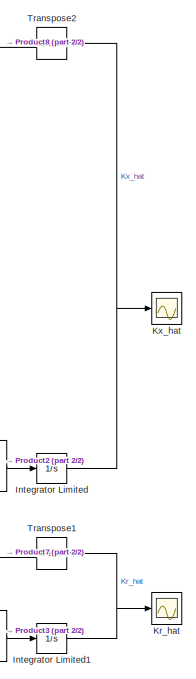
[diagram: root canvas - part 1/2, middle right region]
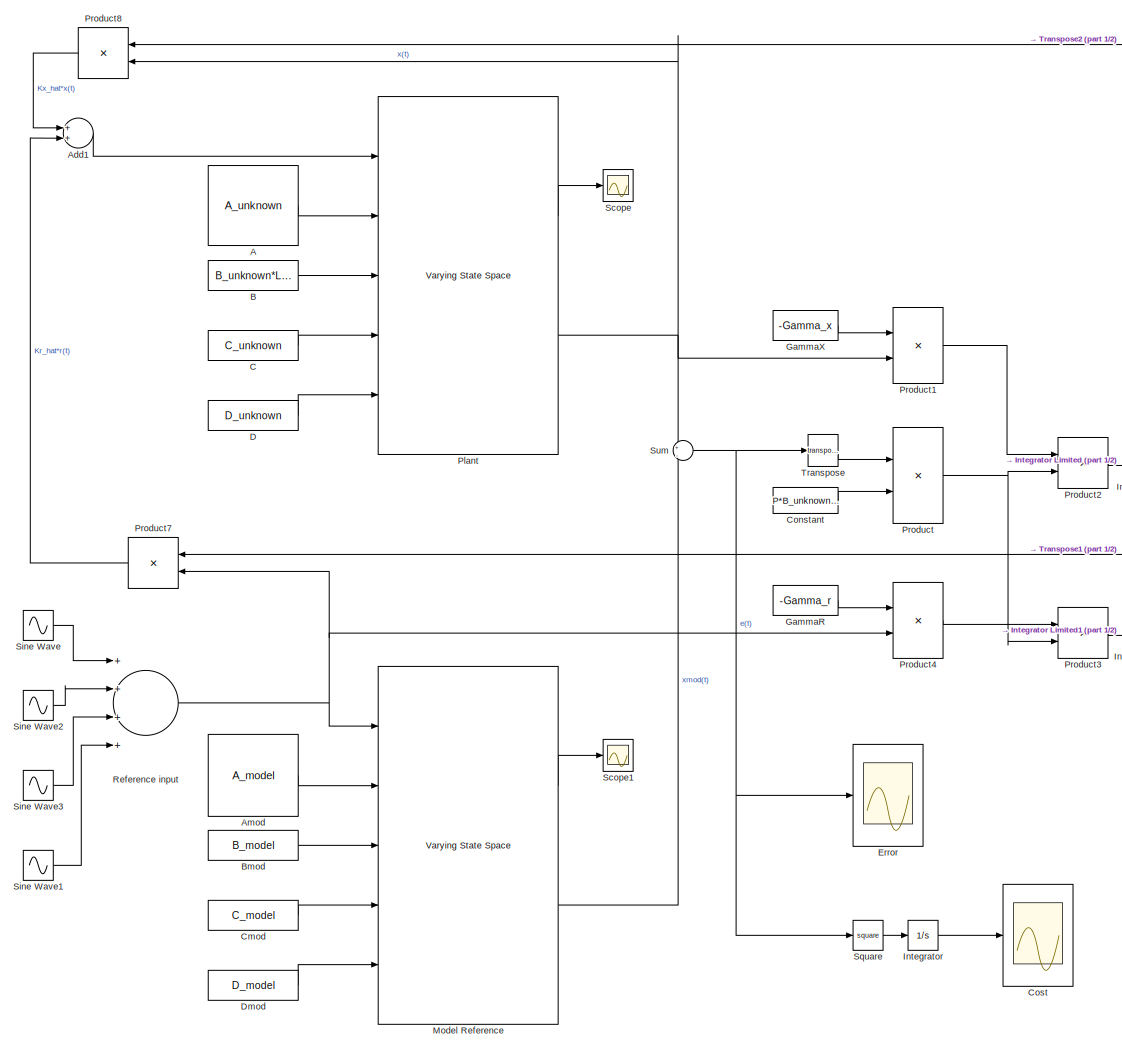
[diagram: root canvas - part 2/2, most of the canvas]
MODEL slx_78c9c2cd16ab
KIND model
CONFIG AbsTol = auto
CONFIG EnableMultiTasking = off
CONFIG FixedStep = 0.01
CONFIG MaxStep = auto
CONFIG MinStep = auto
CONFIG RelTol = 1e-3
CONFIG SampleTimeConstraint = Unconstrained
CONFIG Solver = VariableStepAuto
CONFIG SolverName = VariableStepAuto
CONFIG StartTime = 0.0
CONFIG StopTime = 10000
WORKSPACE source: MAT-file member
WORKSPACE A_model = [-7 1 0 -14 0 1 -8 0 0]
WORKSPACE A_unknown = [-7.5 1 0 -16 0 1 -8.5 0 0]
WORKSPACE C_unknown = [-7 -9 2]
BLOCK [Constant] A
  Value = A_unknown
  VectorParams1D = off
BLOCK [Sum] Add1
  InputSameDT = off
  OutDataTypeStr = Inherit: Inherit via internal rule
  Ports = [2, 1]
  SaturateOnIntegerOverflow = off
BLOCK [Constant] Amod
  Value = A_model
  VectorParams1D = off
BLOCK [Constant] B
  Value = B_unknown*Lambda
  VectorParams1D = off
BLOCK [Constant] Bmod
  Value = B_model
  VectorParams1D = off
BLOCK [Constant] C
  Value = C_unknown
  VectorParams1D = off
BLOCK [Constant] Cmod
  Value = C_model
  VectorParams1D = off
BLOCK [Constant] Constant
  Value = P*B_unknown*sign(Lambda)
BLOCK [Scope] Cost
  Floating = off
  NumInputPorts = 1
  Ports = [1]
  ScopeSpecificationString = Simulink.scopes.TimeScopeBlockCfg('CurrentConfiguration', extmgr.ConfigurationSet(extmgr.Configuration('Core','General UI',true),extmgr.Configuration('Core','Source UI',true),extmgr.Configuration('Sources','WiredSimulink',true,'DataLoggingVariableName','ScopeData5'),extmgr.Configuration('Visuals','Time Domain',true,'SerializedDisplays',{struct('MinYLimReal','-0.01089','MaxYLimReal','0.09804','YLab...<+1401ch>
BLOCK [Constant] D
  Value = D_unknown
BLOCK [Constant] Dmod
  Value = D_model
BLOCK [Scope] Error
  Floating = off
  NumInputPorts = 1
  Ports = [1]
  ScopeSpecificationString = Simulink.scopes.TimeScopeBlockCfg('CurrentConfiguration', extmgr.ConfigurationSet(extmgr.Configuration('Core','General UI',true),extmgr.Configuration('Core','Source UI',true),extmgr.Configuration('Sources','WiredSimulink',true,'DataLoggingVariableName','ScopeData1'),extmgr.Configuration('Visuals','Time Domain',true,'SerializedDisplays',{struct('MinYLimReal','-0.32134','MaxYLimReal','0.17301','YLab...<+1383ch>
BLOCK [Constant] GammaR
  Value = -Gamma_r
BLOCK [Constant] GammaX
  Value = -Gamma_x
BLOCK [Integrator] Integrator
  Ports = [1, 1]
BLOCK [Integrator] Integrator Limited
  InitialCondition = K_x_hat_0
  LimitOutput = on
  LowerSaturationLimit = 0
  Ports = [1, 1]
  UpperSaturationLimit = 1
BLOCK [Integrator] Integrator Limited1
  InitialCondition = K_r_hat_0
  LimitOutput = on
  LowerSaturationLimit = 0
  Ports = [1, 1]
  UpperSaturationLimit = 1
BLOCK [Scope] Kr_hat
  Floating = off
  NumInputPorts = 1
  Ports = [1]
  ScopeSpecificationString = Simulink.scopes.TimeScopeBlockCfg('CurrentConfiguration', extmgr.ConfigurationSet(extmgr.Configuration('Core','General UI',true),extmgr.Configuration('Core','Source UI',true),extmgr.Configuration('Sources','WiredSimulink',true,'DataLoggingVariableName','ScopeData3'),extmgr.Configuration('Visuals','Time Domain',true,'SerializedDisplays',{struct('MinYLimReal','-0.083','MaxYLimReal','0.74702','YLabel...<+1361ch>
BLOCK [Scope] Kx_hat
  Floating = off
  NumInputPorts = 1
  Ports = [1]
  ScopeSpecificationString = Simulink.scopes.TimeScopeBlockCfg('CurrentConfiguration', extmgr.ConfigurationSet(extmgr.Configuration('Core','General UI',true),extmgr.Configuration('Core','Source UI',true),extmgr.Configuration('Sources','WiredSimulink',true,'DataLoggingVariableName','ScopeData2'),extmgr.Configuration('Visuals','Time Domain',true,'SerializedDisplays',{struct('MinYLimReal','-0.125','MaxYLimReal','1.125','YLabelRe...<+1377ch>
BLOCK [Reference] Model Reference  REF=cstblocks/Linear Parameter Varying/Varying State Space
  Ports = [5, 2]
  SourceBlock = cstblocks/Linear Parameter Varying/Varying State Space
  SourceProductBaseCode = CT
  SourceProductName = Control System Toolbox
  SourceType = Varying State Space
BLOCK [Reference] Plant  REF=cstblocks/Linear Parameter Varying/Varying State Space
  Ports = [5, 2]
  SourceBlock = cstblocks/Linear Parameter Varying/Varying State Space
  SourceProductBaseCode = CT
  SourceProductName = Control System Toolbox
  SourceType = Varying State Space
BLOCK [Product] Product
  Multiplication = Matrix(*)
  OutDataTypeStr = Inherit: Inherit via internal rule
  Ports = [2, 1]
  RndMeth = Floor
  SCDEnableBlockLinearizationSpecification = on
  SaturateOnIntegerOverflow = off
BLOCK [Product] Product1
  InputSameDT = off
  Multiplication = Matrix(*)
  OutDataTypeStr = Inherit: Inherit via internal rule
  Ports = [2, 1]
  RndMeth = Floor
  SCDEnableBlockLinearizationSpecification = on
  SaturateOnIntegerOverflow = off
BLOCK [Product] Product2
  InputSameDT = off
  Multiplication = Matrix(*)
  OutDataTypeStr = Inherit: Inherit via internal rule
  Ports = [2, 1]
  RndMeth = Floor
  SCDEnableBlockLinearizationSpecification = on
  SaturateOnIntegerOverflow = off
BLOCK [Product] Product3
  InputSameDT = off
  Multiplication = Matrix(*)
  OutDataTypeStr = Inherit: Inherit via internal rule
  Ports = [2, 1]
  RndMeth = Floor
  SCDEnableBlockLinearizationSpecification = on
  SaturateOnIntegerOverflow = off
BLOCK [Product] Product4
  InputSameDT = off
  Multiplication = Matrix(*)
  OutDataTypeStr = Inherit: Inherit via internal rule
  Ports = [2, 1]
  RndMeth = Floor
  SCDEnableBlockLinearizationSpecification = on
  SaturateOnIntegerOverflow = off
BLOCK [Product] Product7
  InputSameDT = off
  Multiplication = Matrix(*)
  OutDataTypeStr = Inherit: Inherit via internal rule
  Ports = [2, 1]
  RndMeth = Floor
  SCDEnableBlockLinearizationSpecification = on
  SaturateOnIntegerOverflow = off
BLOCK [Product] Product8
  InputSameDT = off
  Multiplication = Matrix(*)
  OutDataTypeStr = Inherit: Inherit via internal rule
  Ports = [2, 1]
  RndMeth = Floor
  SCDEnableBlockLinearizationSpecification = on
  SaturateOnIntegerOverflow = off
BLOCK [Sum] Reference input
  InputSameDT = off
  Inputs = ++++
  OutDataTypeStr = Inherit: Inherit via internal rule
  Ports = [4, 1]
  SaturateOnIntegerOverflow = off
BLOCK [Scope] Scope
  Floating = off
  NumInputPorts = 1
  Ports = [1]
  ScopeSpecificationString = Simulink.scopes.TimeScopeBlockCfg('CurrentConfiguration', extmgr.ConfigurationSet(extmgr.Configuration('Core','General UI',true),extmgr.Configuration('Core','Source UI',true),extmgr.Configuration('Sources','WiredSimulink',true,'DataLoggingVariableName','ScopeData4'),extmgr.Configuration('Visuals','Time Domain',true,'SerializedDisplays',{struct('MinYLimReal','-9.45291','MaxYLimReal','8.48903','YLab...<+1366ch>
BLOCK [Scope] Scope1
  Floating = off
  NumInputPorts = 1
  Ports = [1]
  ScopeSpecificationString = Simulink.scopes.TimeScopeBlockCfg('CurrentConfiguration', extmgr.ConfigurationSet(extmgr.Configuration('Core','General UI',true),extmgr.Configuration('Core','Source UI',true),extmgr.Configuration('Sources','WiredSimulink',true),extmgr.Configuration('Visuals','Time Domain',true,'SerializedDisplays',{struct('MinYLimReal','-9.45224','MaxYLimReal','8.48293','YLabelReal','','MinYLimMag','0.00000','MaxY...<+1337ch>
BLOCK [Sin] Sine Wave
  Amplitude = 3.5
  Frequency = 3.5
  Ports = [0, 1]
  SampleTime = 0
BLOCK [Sin] Sine Wave1
  Ports = [0, 1]
  SampleTime = 0
BLOCK [Sin] Sine Wave2
  Amplitude = 2
  Frequency = 4
  Ports = [0, 1]
  SampleTime = 0
BLOCK [Sin] Sine Wave3
  Amplitude = 0.3
  Frequency = 0.7
  Ports = [0, 1]
  SampleTime = 0
BLOCK [Math] Square
  Operator = square
  Ports = [1, 1]
BLOCK [Sum] Sum
  IconShape = round
  InputSameDT = off
  Inputs = +|-
  OutDataTypeStr = Inherit: Inherit via internal rule
  Ports = [2, 1]
  SaturateOnIntegerOverflow = off
BLOCK [Math] Transpose
  Operator = transpose
  Ports = [1, 1]
BLOCK [Math] Transpose1
  Operator = transpose
  Ports = [1, 1]
BLOCK [Math] Transpose2
  Operator = transpose
  Ports = [1, 1]
LINE A:1 -> Plant:2
LINE Add1:1 -> Plant:1
LINE Amod:1 -> Model Reference:2
LINE B:1 -> Plant:3
LINE Bmod:1 -> Model Reference:3
LINE C:1 -> Plant:4
LINE Cmod:1 -> Model Reference:4
LINE Constant:1 -> Product:2
LINE D:1 -> Plant:5
LINE Dmod:1 -> Model Reference:5
LINE GammaR:1 -> Product4:1
LINE GammaX:1 -> Product1:1
NET Integrator Limited1:1 -> Kr_hat:1, Transpose1:1
NET Integrator Limited:1 -> Kx_hat:1, Transpose2:1
LINE Integrator:1 -> Cost:1
LINE Model Reference:1 -> Scope1:1
LINE Model Reference:2 -> Sum:2
LINE Plant:1 -> Scope:1
NET Plant:2 -> Product1:2, Product8:2, Sum:1
LINE Product1:1 -> Product2:1
LINE Product2:1 -> Integrator Limited:1
LINE Product3:1 -> Integrator Limited1:1
LINE Product4:1 -> Product3:1
LINE Product7:1 -> Add1:2
LINE Product8:1 -> Add1:1
NET Product:1 -> Product2:2, Product3:2
NET Reference input:1 -> Model Reference:1, Product4:2, Product7:2
LINE Sine Wave1:1 -> Reference input:4
LINE Sine Wave2:1 -> Reference input:2
LINE Sine Wave3:1 -> Reference input:3
LINE Sine Wave:1 -> Reference input:1
LINE Square:1 -> Integrator:1
NET Sum:1 -> Error:1, Square:1, Transpose:1
LINE Transpose1:1 -> Product7:1
LINE Transpose2:1 -> Product8:1
LINE Transpose:1 -> Product:1
note: NET lines group one-source signal fan-out (src -> all destinations, sorted); 1:1 wires keep LINE
